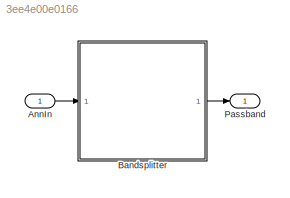
MODEL slx_3ee4e00e0166
KIND library
CONFIG AbsTol = auto
CONFIG EnableMultiTasking = off
CONFIG FixedStep = auto
CONFIG MaxStep = auto
CONFIG MinStep = auto
CONFIG RelTol = 1e-3
CONFIG SampleTimeConstraint = Unconstrained
CONFIG SolverName = VariableStepAuto
CONFIG StartTime = 0.0
CONFIG StopTime = 10.0
BLOCK [Inport] AnnIn
  OutDataTypeStr = single
  PortDimensions = [frame_size ann_sysin_channel_count]
  SampleTime = 1/sample_rate_in_hertz * frame_size
  VarSizeSig = No
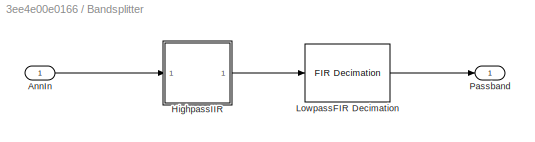
BLOCK [SubSystem] Bandsplitter
  TreatAsAtomicUnit = on
  VariantControl = AnnounceBandsplitterHpfVariant==1
BLOCK [Inport] Bandsplitter/AnnIn
  OutDataTypeStr = single
  VarSizeSig = No
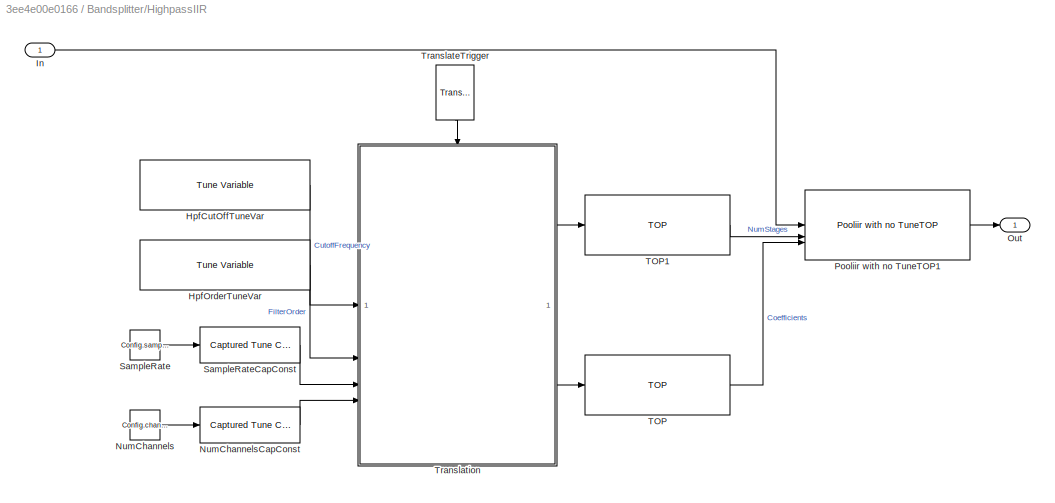
BLOCK [SubSystem] Bandsplitter/HighpassIIR
BLOCK [Reference] Bandsplitter/HighpassIIR/HpfCutOffTuneVar  REF=TuneVar/Tune Variable
  SourceBlock = TuneVar/Tune Variable
  SourceType = Bose Tune Variable
BLOCK [Reference] Bandsplitter/HighpassIIR/HpfOrderTuneVar  REF=TuneVar/Tune Variable
  SourceBlock = TuneVar/Tune Variable
  SourceType = Bose Tune Variable
BLOCK [Inport] Bandsplitter/HighpassIIR/In
BLOCK [Constant] Bandsplitter/HighpassIIR/NumChannels
  Value = Config.channelCount
BLOCK [Reference] Bandsplitter/HighpassIIR/NumChannelsCapConst  REF=TuneVar/Captured Tune Const
  SourceBlock = TuneVar/Captured Tune Const
  SourceType = Bose Captured Constant
BLOCK [Outport] Bandsplitter/HighpassIIR/Out
BLOCK [Reference] Bandsplitter/HighpassIIR/Pooliir with no TuneTOP1  REF=Pooliir/Pooliir with no TuneTOP
  SourceBlock = Pooliir/Pooliir with no TuneTOP
BLOCK [Constant] Bandsplitter/HighpassIIR/SampleRate
  Value = Config.sampleRate
BLOCK [Reference] Bandsplitter/HighpassIIR/SampleRateCapConst  REF=TuneVar/Captured Tune Const
  SourceBlock = TuneVar/Captured Tune Const
  SourceType = Bose Captured Constant
BLOCK [Reference] Bandsplitter/HighpassIIR/TOP  REF=TOP/TOP
  SourceBlock = TOP/TOP
  SourceType = Bose Target Overlay Parameter
BLOCK [Reference] Bandsplitter/HighpassIIR/TOP1  REF=TOP/TOP
  SourceBlock = TOP/TOP
  SourceType = Bose Target Overlay Parameter
BLOCK [Reference] Bandsplitter/HighpassIIR/TranslateTrigger  REF=TuneVar/TranslateTrigger
  NameLocation = left
  SourceBlock = TuneVar/TranslateTrigger
  SourceType = Bose Translate Trigger
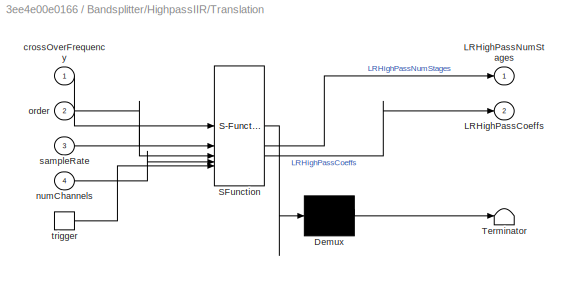
BLOCK [SubSystem] Bandsplitter/HighpassIIR/Translation
  ErrorFcn = Stateflow.Translate.translate
  PermitHierarchicalResolution = ExplicitOnly
  SFBlockType = MATLAB Function
  TreatAsAtomicUnit = on
BLOCK [Demux] Bandsplitter/HighpassIIR/Translation/ Demux 
  Outputs = 1
BLOCK [S-Function] Bandsplitter/HighpassIIR/Translation/ SFunction 
  EnableBusSupport = off
  FunctionName = sf_sfun
  PortCounts = [5 3]
  SFcnIsStateOwnerBlock = off
  SFunctionDeploymentMode = off
  Tag = Stateflow S-Function 1
BLOCK [Terminator] Bandsplitter/HighpassIIR/Translation/ Terminator 
BLOCK [Outport] Bandsplitter/HighpassIIR/Translation/LRHighPassCoeffs
  Port = 2
  VectorParamsAs1DForOutWhenUnconnected = off
BLOCK [Outport] Bandsplitter/HighpassIIR/Translation/LRHighPassNumStages
  VectorParamsAs1DForOutWhenUnconnected = off
BLOCK [Inport] Bandsplitter/HighpassIIR/Translation/crossOverFrequency
BLOCK [Inport] Bandsplitter/HighpassIIR/Translation/numChannels
  Port = 4
BLOCK [Inport] Bandsplitter/HighpassIIR/Translation/order
  Port = 2
BLOCK [Inport] Bandsplitter/HighpassIIR/Translation/sampleRate
  Port = 3
BLOCK [TriggerPort] Bandsplitter/HighpassIIR/Translation/trigger
  ShowOutputPort = on
  StatesWhenEnabling = held
  TriggerType = function-call
  VariantControl = Variant
BLOCK [Reference] Bandsplitter/LowpassFIR Decimation  REF=dspmlti4/FIR
Decimation
  SourceBlock = dspmlti4/FIR\nDecimation
  SourceType = FIR Decimation
  UserDataPersistent = on
BLOCK [Outport] Bandsplitter/Passband
  VectorParamsAs1DForOutWhenUnconnected = off
BLOCK [Outport] Passband
  VectorParamsAs1DForOutWhenUnconnected = off
LINE AnnIn:1 -> Bandsplitter:1
LINE Bandsplitter/AnnIn:1 -> Bandsplitter/HighpassIIR:1
LINE Bandsplitter/HighpassIIR/HpfCutOffTuneVar:1 -> Bandsplitter/HighpassIIR/Translation:1
LINE Bandsplitter/HighpassIIR/HpfOrderTuneVar:1 -> Bandsplitter/HighpassIIR/Translation:2
LINE Bandsplitter/HighpassIIR/In:1 -> Bandsplitter/HighpassIIR/Pooliir with no TuneTOP1:1
LINE Bandsplitter/HighpassIIR/NumChannels:1 -> Bandsplitter/HighpassIIR/NumChannelsCapConst:1
LINE Bandsplitter/HighpassIIR/NumChannelsCapConst:1 -> Bandsplitter/HighpassIIR/Translation:4
LINE Bandsplitter/HighpassIIR/Pooliir with no TuneTOP1:1 -> Bandsplitter/HighpassIIR/Out:1
LINE Bandsplitter/HighpassIIR/SampleRate:1 -> Bandsplitter/HighpassIIR/SampleRateCapConst:1
LINE Bandsplitter/HighpassIIR/SampleRateCapConst:1 -> Bandsplitter/HighpassIIR/Translation:3
LINE Bandsplitter/HighpassIIR/TOP1:1 -> Bandsplitter/HighpassIIR/Pooliir with no TuneTOP1:2
LINE Bandsplitter/HighpassIIR/TOP:1 -> Bandsplitter/HighpassIIR/Pooliir with no TuneTOP1:3
LINE Bandsplitter/HighpassIIR/TranslateTrigger:1 -> Bandsplitter/HighpassIIR/Translation:trigger
LINE Bandsplitter/HighpassIIR/Translation:1 -> Bandsplitter/HighpassIIR/TOP1:1
LINE Bandsplitter/HighpassIIR/Translation:2 -> Bandsplitter/HighpassIIR/TOP:1
LINE Bandsplitter/HighpassIIR:1 -> Bandsplitter/LowpassFIR Decimation:1
LINE Bandsplitter/LowpassFIR Decimation:1 -> Bandsplitter/Passband:1
LINE Bandsplitter:1 -> Passband:1
CHART Bandsplitter/HighpassIIR/Translation states=1 transitions=1
  STATE_LABEL 'eML_blk_kernel()'
  STATE_LABEL 'SCRIPT:\nfunction [LRHighPassNumStages, LRHighPassCoeffs]  = fcn(crossOverFrequency, order, sampleRate, numChannels)\n%#codegen\n\n% Linkwitz-Riley Filters can be construed as the cascade of\n% two Butterworth Filters of half the order at the same frequency.\nfilterOrder = order.Value;\nbutterOrder = floor((filterOrder+1)/2);\nnormFrequency = crossOverFrequency.Value/(sampleRate/2);\n\n% High-pass Filters\n[...<+3388ch>'
CHART  states=0 transitions=0
